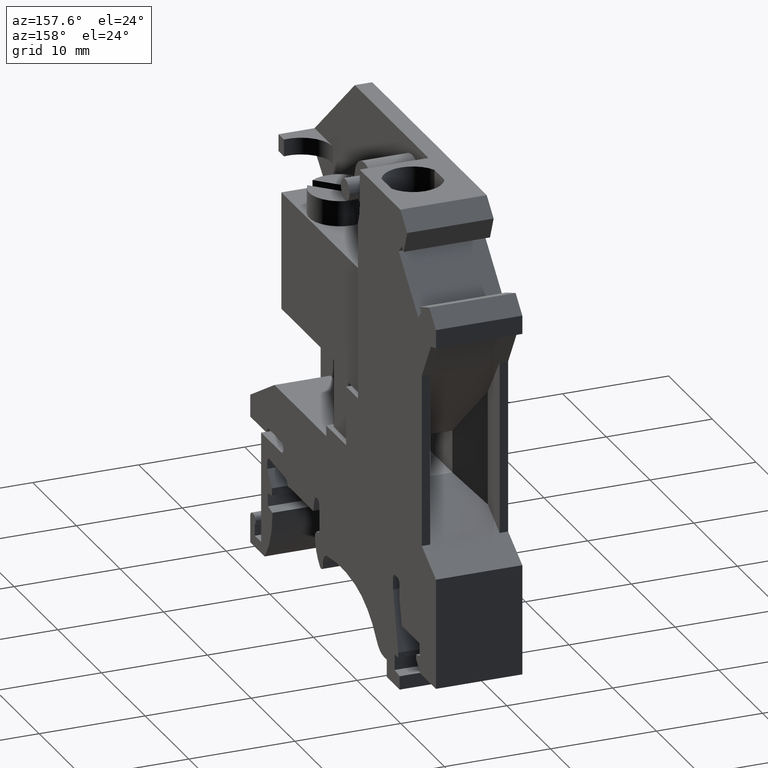
[diagram: clean part render]
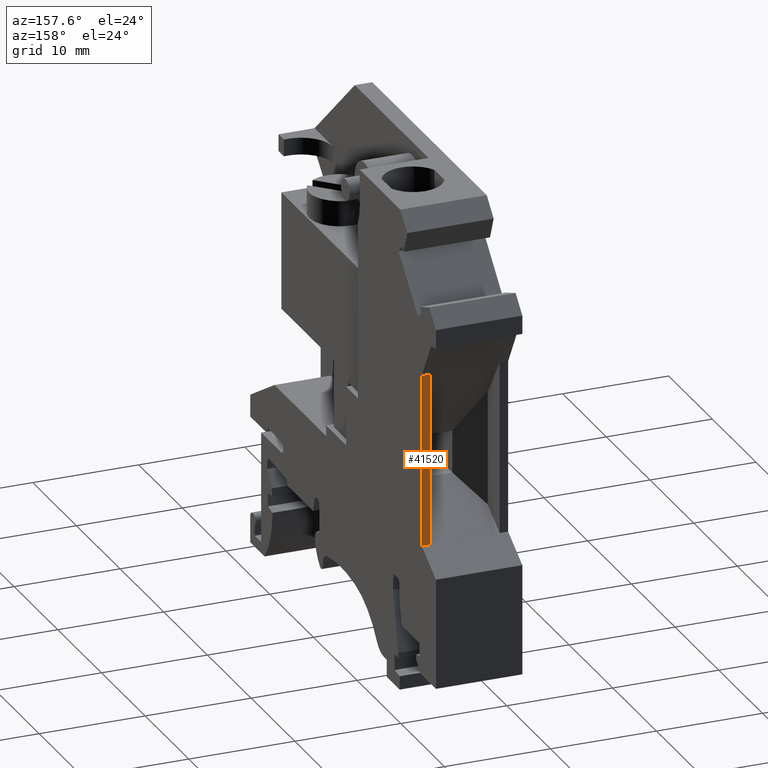
[diagram: same view with one face highlighted and labeled with its STEP entity id]
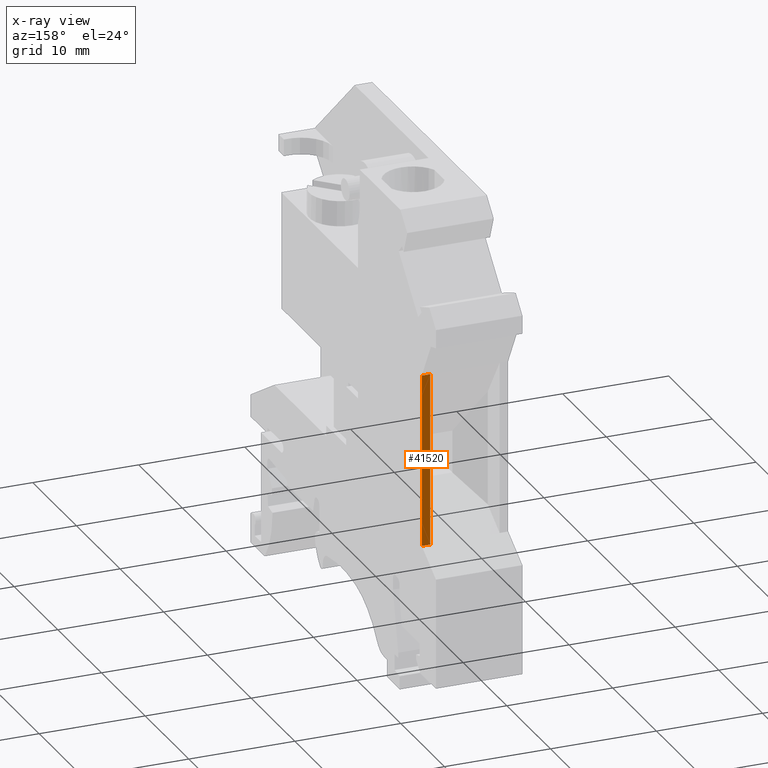
[diagram: x-ray of the same camera — body ghosted, the highlighted face saturated]
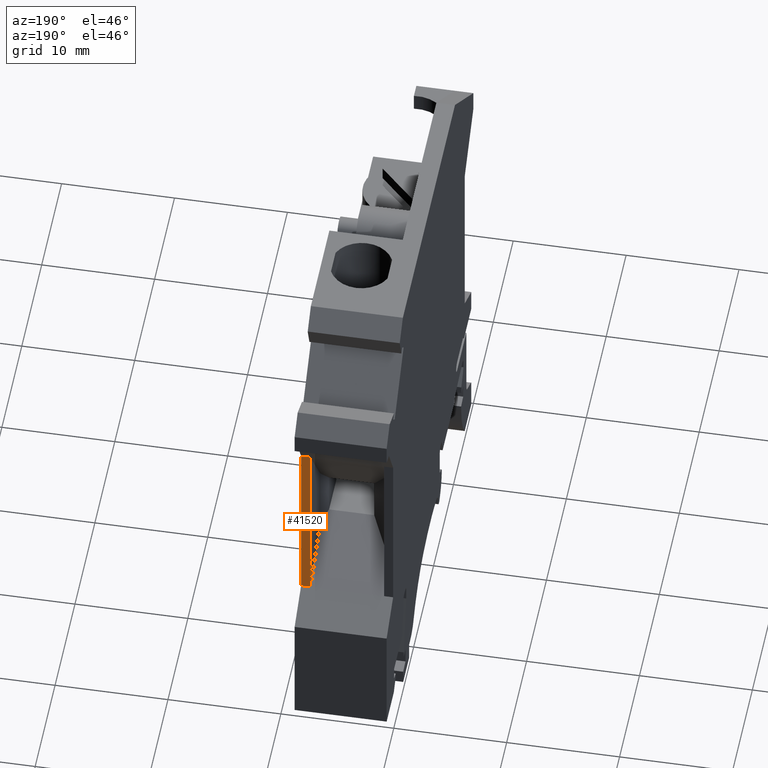
[diagram: same view with one face highlighted and labeled with its STEP entity id]
A machine part, auxiliary view. The second image highlights one B-rep face of the part: STEP entity #41520.
The next image is the same camera in x-ray: the body ghosted, the highlighted face saturated — about 0% of this face is hidden behind the body in this view.
A second angle (auxiliary view) of the same face is appended — the face is thin or edge-on in the first view.
In plain terms, the highlighted planar face has unit normal (0, -1, 0).
Its self-contained STEP definition (entity closure, byte-faithful):
#6880=CARTESIAN_POINT('',(49.8291997327281,5.95865817770094,0.));
#6890=DIRECTION('',(0.,0.,-1.));
#6900=VECTOR('',#6890,1.);
#6910=LINE('',#6880,#6900);
#6920=CARTESIAN_POINT('',(49.8291997327281,5.95865817770094,8.15));
#6930=VERTEX_POINT('',#6920);
#6940=CARTESIAN_POINT('',(49.8291997327278,5.9586581777011,7.35));
#6950=VERTEX_POINT('',#6940);
#6960=EDGE_CURVE('',#6930,#6950,#6910,.T.);
#20000=CARTESIAN_POINT('',(49.8291997327281,22.7799129792375,6.15));
#20010=DIRECTION('',(-1.,0.,0.));
#20020=DIRECTION('',(0.,1.,0.));
#20030=AXIS2_PLACEMENT_3D('',#20000,#20010,#20020);
#20040=PLANE('',#20030);
#20150=CARTESIAN_POINT('',(49.8291997327281,22.2213514818061,0.));
#20160=DIRECTION('',(0.,0.,-1.));
#20170=VECTOR('',#20160,1.);
#20180=LINE('',#20150,#20170);
#28490=CARTESIAN_POINT('',(49.8291997327281,22.2213514818061,7.35));
#28500=VERTEX_POINT('',#28490);
#28530=CARTESIAN_POINT('',(49.8291997327281,22.2213514818061,8.15));
#28540=VERTEX_POINT('',#28530);
#28550=EDGE_CURVE('',#28540,#28500,#20180,.T.);
#41360=ORIENTED_EDGE('',*,*,#6960,.T.);
#41370=CARTESIAN_POINT('',(49.8291997327281,0.,8.15));
#41380=DIRECTION('',(0.,-1.,0.));
#41390=VECTOR('',#41380,1.);
#41400=LINE('',#41370,#41390);
#41410=EDGE_CURVE('',#28540,#6930,#41400,.T.);
#41420=ORIENTED_EDGE('',*,*,#41410,.T.);
#41430=ORIENTED_EDGE('',*,*,#28550,.F.);
#41440=CARTESIAN_POINT('',(49.8291997327281,0.,7.35));
#41450=DIRECTION('',(0.,1.,0.));
#41460=VECTOR('',#41450,1.);
#41470=LINE('',#41440,#41460);
#41480=EDGE_CURVE('',#6950,#28500,#41470,.T.);
#41490=ORIENTED_EDGE('',*,*,#41480,.T.);
#41500=EDGE_LOOP('',(#41490,#41430,#41420,#41360));
#41510=FACE_OUTER_BOUND('',#41500,.T.);
#41520=ADVANCED_FACE('',(#41510),#20040,.F.);